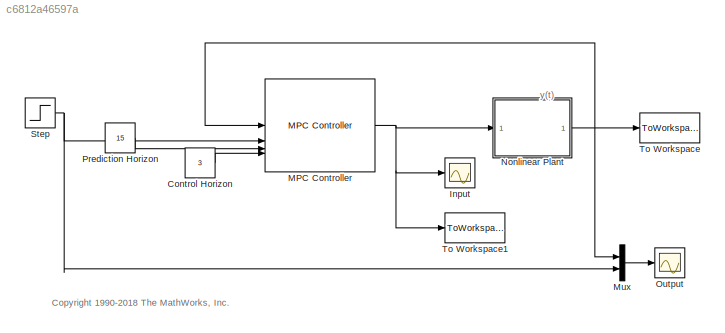
MODEL slx_c6812a46597a
KIND model
CONFIG AbsTol = auto
CONFIG EnableMultiTasking = off
CONFIG FixedStep = auto
CONFIG MaxStep = auto
CONFIG MinStep = auto
CONFIG RelTol = 1e-3
CONFIG SampleTimeConstraint = Unconstrained
CONFIG SolverName = ode23s
CONFIG StartTime = 0.0
CONFIG StopTime = 10
BLOCK [Constant] Control Horizon
  Value = 3
BLOCK [Scope] Input
  Floating = off
  NumInputPorts = 1
  ScopeSpecificationString = Simulink.scopes.TimeScopeBlockCfg('CurrentConfiguration', extmgr.ConfigurationSet(extmgr.Configuration('Core','General UI',true),extmgr.Configuration('Core','Source UI',true),extmgr.Configuration('Sources','WiredSimulink',true,'DataLoggingSaveFormat','Structure','DataLoggingLimitDataPoints',true,'DataLoggingDecimation','1','DataLoggingDecimateData',true),extmgr.Configuration('Visuals','Time Domain...<+1672ch>
BLOCK [Reference] MPC Controller  REF=mpclib/MPC Controller  (lib defined in mdl_ae329e0e0455)
  NameLocation = top
  SourceBlock = mpclib/MPC Controller
  SourceType = MPC
BLOCK [Mux] Mux
  DisplayOption = bar
  Inputs = 2
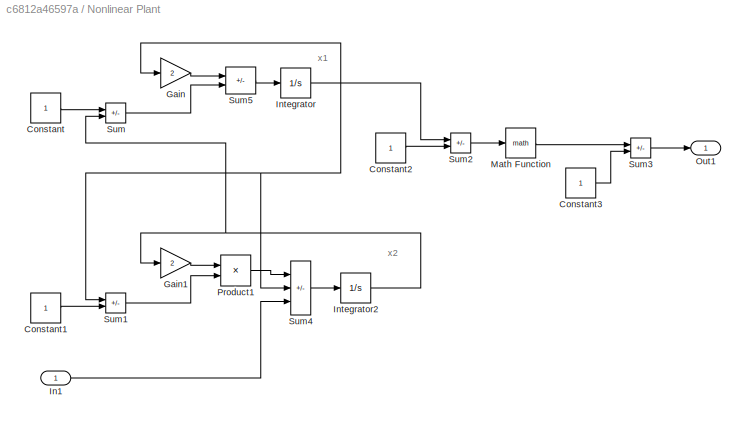
BLOCK [SubSystem] Nonlinear Plant
BLOCK [Constant] Nonlinear Plant/Constant
BLOCK [Constant] Nonlinear Plant/Constant1
BLOCK [Constant] Nonlinear Plant/Constant2
BLOCK [Constant] Nonlinear Plant/Constant3
BLOCK [Gain] Nonlinear Plant/Gain
  Gain = 2
  OutDataTypeStr = Inherit: Same as input
  ParamDataTypeStr = Inherit: Same as input
  SaturateOnIntegerOverflow = on
BLOCK [Gain] Nonlinear Plant/Gain1
  Gain = 2
  OutDataTypeStr = Inherit: Same as input
  ParamDataTypeStr = Inherit: Same as input
  SaturateOnIntegerOverflow = on
BLOCK [Inport] Nonlinear Plant/In1
BLOCK [Integrator] Nonlinear Plant/Integrator
  InitialCondition = x0(1)
  LowerSaturationLimit = -Inf
  UpperSaturationLimit = Inf
BLOCK [Integrator] Nonlinear Plant/Integrator2
  InitialCondition = x0(2)
  LowerSaturationLimit = -Inf
  UpperSaturationLimit = Inf
BLOCK [Math] Nonlinear Plant/Math Function
  SignedPower = on
BLOCK [Outport] Nonlinear Plant/Out1
  VectorParamsAs1DForOutWhenUnconnected = off
BLOCK [Product] Nonlinear Plant/Product1
  InputSameDT = on
  OutDataTypeStr = Inherit: Same as first input
  SaturateOnIntegerOverflow = on
BLOCK [Sum] Nonlinear Plant/Sum
  IconShape = rectangular
  InputSameDT = on
  Inputs = -+
  OutDataTypeStr = Inherit: Same as first input
  SaturateOnIntegerOverflow = on
BLOCK [Sum] Nonlinear Plant/Sum1
  IconShape = rectangular
  InputSameDT = on
  Inputs = -+
  OutDataTypeStr = Inherit: Same as first input
  SaturateOnIntegerOverflow = on
BLOCK [Sum] Nonlinear Plant/Sum2
  IconShape = rectangular
  InputSameDT = on
  Inputs = -+
  OutDataTypeStr = Inherit: Same as first input
  SaturateOnIntegerOverflow = on
BLOCK [Sum] Nonlinear Plant/Sum3
  IconShape = rectangular
  InputSameDT = on
  Inputs = -+
  OutDataTypeStr = Inherit: Same as first input
  SaturateOnIntegerOverflow = on
BLOCK [Sum] Nonlinear Plant/Sum4
  IconShape = rectangular
  InputSameDT = on
  Inputs = +-+
  OutDataTypeStr = Inherit: Same as first input
  SaturateOnIntegerOverflow = on
BLOCK [Sum] Nonlinear Plant/Sum5
  IconShape = rectangular
  InputSameDT = on
  Inputs = -+
  OutDataTypeStr = Inherit: Same as first input
  SaturateOnIntegerOverflow = on
BLOCK [Scope] Output
  Floating = off
  NumInputPorts = 1
  ScopeSpecificationString = Simulink.scopes.TimeScopeBlockCfg('CurrentConfiguration', extmgr.ConfigurationSet(extmgr.Configuration('Core','General UI',true),extmgr.Configuration('Core','Source UI',true),extmgr.Configuration('Sources','WiredSimulink',true,'DataLoggingSaveFormat','Structure','DataLoggingLimitDataPoints',true,'DataLoggingDecimation','1','DataLoggingDecimateData',true),extmgr.Configuration('Visuals','Time Domain...<+1691ch>
BLOCK [Constant] Prediction Horizon
  Value = 15
BLOCK [Step] Step
  After = r0
  Before = y0
  SampleTime = 0
BLOCK [ToWorkspace] To Workspace
  MaxDataPoints = Inf
  SampleTime = -1
  SaveFormat = Structure With Time
  VariableName = y
BLOCK [ToWorkspace] To Workspace1
  MaxDataPoints = Inf
  SampleTime = -1
  SaveFormat = Structure With Time
  VariableName = u
ANNOTATION (root): <copyright redacted>
ANNOTATION (root): y(t)
ANNOTATION Nonlinear Plant: x1
ANNOTATION Nonlinear Plant: x2
LINE Control Horizon:1 -> MPC Controller:4
NET MPC Controller:1 -> Input:1, Nonlinear Plant:1, To Workspace1:1
LINE Mux:1 -> Output:1
LINE Nonlinear Plant/Constant1:1 -> Nonlinear Plant/Sum1:2
LINE Nonlinear Plant/Constant2:1 -> Nonlinear Plant/Sum2:2
LINE Nonlinear Plant/Constant3:1 -> Nonlinear Plant/Sum3:2
LINE Nonlinear Plant/Constant:1 -> Nonlinear Plant/Sum:1
LINE Nonlinear Plant/Gain1:1 -> Nonlinear Plant/Product1:1
LINE Nonlinear Plant/Gain:1 -> Nonlinear Plant/Sum5:1
LINE Nonlinear Plant/In1:1 -> Nonlinear Plant/Sum4:3
NET Nonlinear Plant/Integrator2:1 -> Nonlinear Plant/Gain1:1, Nonlinear Plant/Sum:2
NET Nonlinear Plant/Integrator:1 -> Nonlinear Plant/Gain:1, Nonlinear Plant/Sum1:1, Nonlinear Plant/Sum2:1, Nonlinear Plant/Sum4:2
LINE Nonlinear Plant/Math Function:1 -> Nonlinear Plant/Sum3:1
LINE Nonlinear Plant/Product1:1 -> Nonlinear Plant/Sum4:1
LINE Nonlinear Plant/Sum1:1 -> Nonlinear Plant/Product1:2
LINE Nonlinear Plant/Sum2:1 -> Nonlinear Plant/Math Function:1
LINE Nonlinear Plant/Sum3:1 -> Nonlinear Plant/Out1:1
LINE Nonlinear Plant/Sum4:1 -> Nonlinear Plant/Integrator2:1
LINE Nonlinear Plant/Sum5:1 -> Nonlinear Plant/Integrator:1
LINE Nonlinear Plant/Sum:1 -> Nonlinear Plant/Sum5:2
NET Nonlinear Plant:1 -> MPC Controller:1, Mux:1, To Workspace:1
LINE Prediction Horizon:1 -> MPC Controller:3
NET Step:1 -> MPC Controller:2, Mux:2
note: NET lines group one-source signal fan-out (src -> all destinations, sorted); 1:1 wires keep LINE
